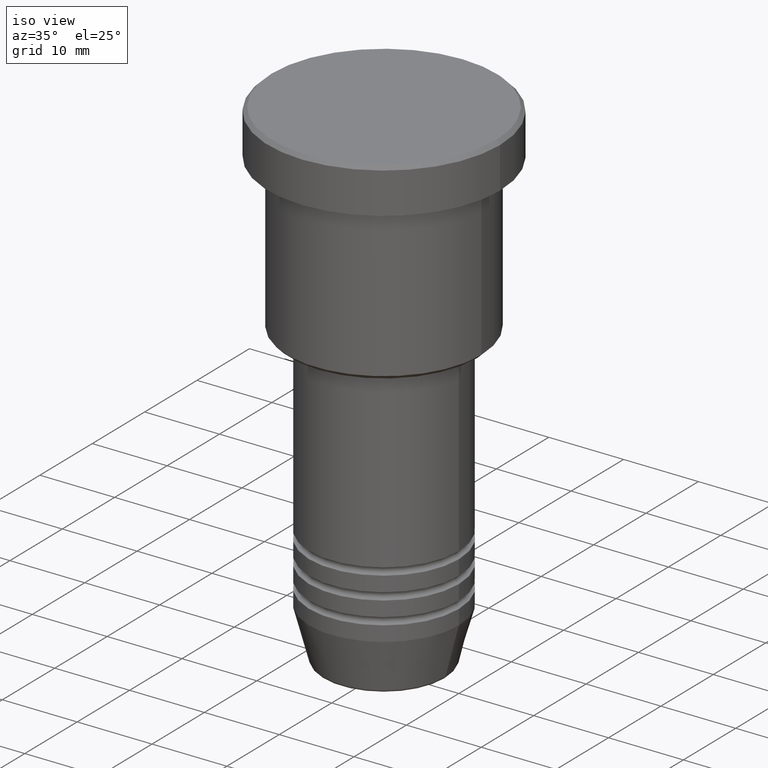
[diagram: clean part render]
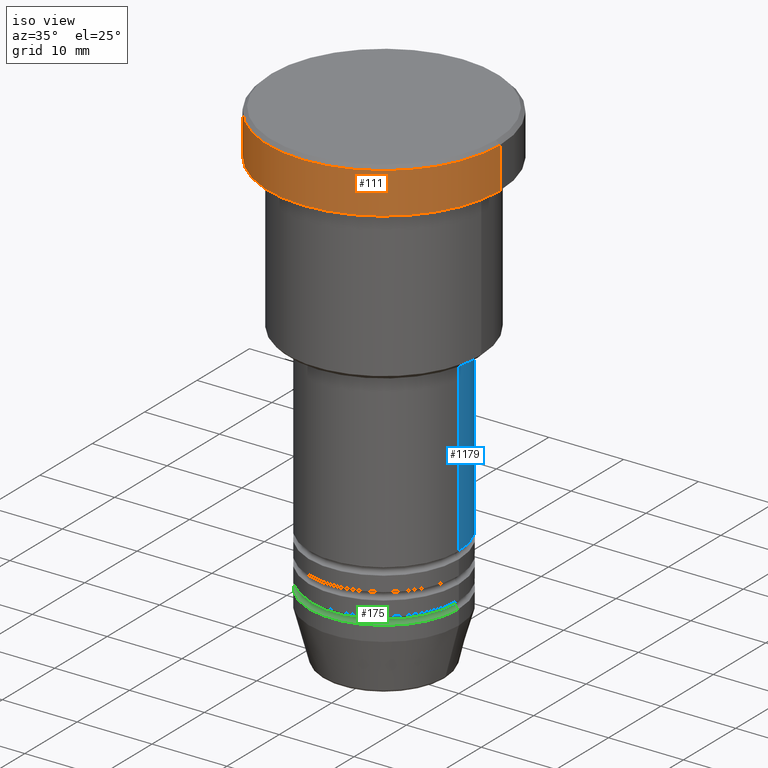
[diagram: same view with three faces highlighted in distinct colors, each labeled with its STEP entity id]
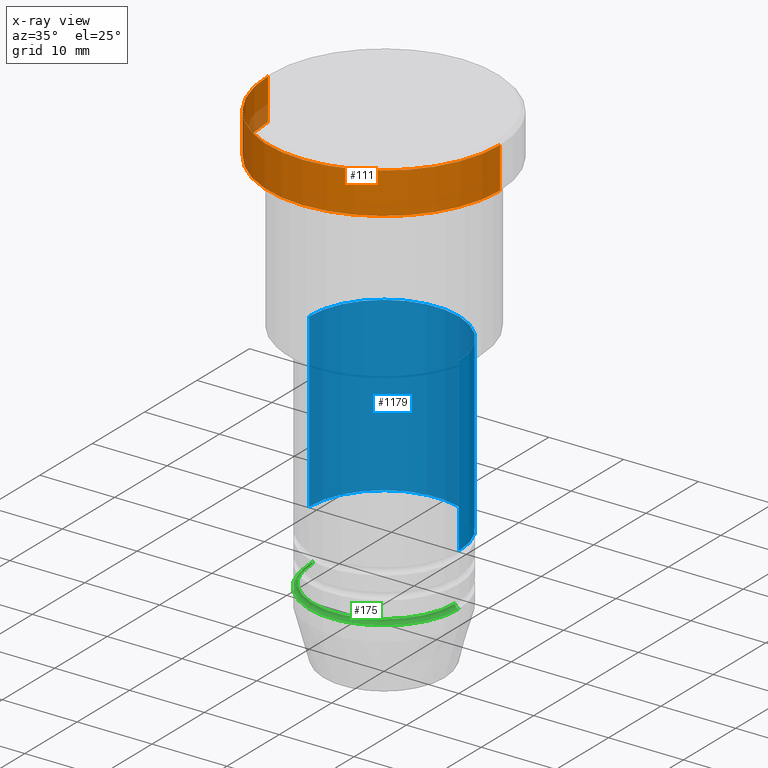
[diagram: x-ray of the same camera — body ghosted, the three highlighted faces saturated]
A machine part, iso view with three faces highlighted in distinct colors.
The next image is the same camera in x-ray (body ghosted, the three faces saturated) — at least one of them is partly hidden behind the body in this view.
Their STEP definitions:

[orange] entity #111 — the highlighted cylindrical surface (partial cylindrical patch) has radius 15.5 mm, axis along (-0, -0, 1).
#15 = CARTESIAN_POINT ( 'NONE',  ( 0.000000000000000000, 0.000000000000000000, -0.5000000000000057732 ) ) ;
#66 = DIRECTION ( 'NONE',  ( -0.000000000000000000, -0.000000000000000000, 1.000000000000000000 ) ) ;
#69 = LINE ( 'NONE', #983, #1095 ) ;
#76 = CARTESIAN_POINT ( 'NONE',  ( 0.000000000000000000, 0.000000000000000000, -5.999999999999995559 ) ) ;
#82 = EDGE_LOOP ( 'NONE', ( #865, #254, #1032, #250 ) ) ;
#87 = DIRECTION ( 'NONE',  ( 1.000000000000000000, 0.000000000000000000, 0.000000000000000000 ) ) ;
#111 = ADVANCED_FACE ( 'NONE', ( #325 ), #601, .T. ) ;
#143 = VERTEX_POINT ( 'NONE', #958 ) ;
#180 = DIRECTION ( 'NONE',  ( 1.000000000000000000, 0.000000000000000000, 0.000000000000000000 ) ) ;
#250 = ORIENTED_EDGE ( 'NONE', *, *, #786, .T. ) ;
#254 = ORIENTED_EDGE ( 'NONE', *, *, #695, .T. ) ;
#283 = DIRECTION ( 'NONE',  ( -0.000000000000000000, -0.000000000000000000, 1.000000000000000000 ) ) ;
#287 = CARTESIAN_POINT ( 'NONE',  ( -15.50000000000000000, 1.898202538678397557E-15, -5.999999999999995559 ) ) ;
#325 = FACE_OUTER_BOUND ( 'NONE', #82, .T. ) ;
#337 = CIRCLE ( 'NONE', #995, 15.50000000000000000 ) ;
#423 = VERTEX_POINT ( 'NONE', #287 ) ;
#432 = AXIS2_PLACEMENT_3D ( 'NONE', #507, #66, #1066 ) ;
#496 = DIRECTION ( 'NONE',  ( -0.000000000000000000, -0.000000000000000000, 1.000000000000000000 ) ) ;
#498 = VERTEX_POINT ( 'NONE', #667 ) ;
#507 = CARTESIAN_POINT ( 'NONE',  ( 0.000000000000000000, 0.000000000000000000, 0.000000000000000000 ) ) ;
#549 = CIRCLE ( 'NONE', #1097, 15.50000000000000000 ) ;
#580 = EDGE_CURVE ( 'NONE', #143, #750, #69, .T. ) ;
#601 = CYLINDRICAL_SURFACE ( 'NONE', #432, 15.50000000000000000 ) ;
#667 = CARTESIAN_POINT ( 'NONE',  ( -15.50000000000000000, 1.898202538678397557E-15, -0.5000000000000057732 ) ) ;
#695 = EDGE_CURVE ( 'NONE', #423, #143, #549, .T. ) ;
#750 = VERTEX_POINT ( 'NONE', #1111 ) ;
#786 = EDGE_CURVE ( 'NONE', #750, #498, #337, .T. ) ;
#801 = DIRECTION ( 'NONE',  ( -0.000000000000000000, -0.000000000000000000, 1.000000000000000000 ) ) ;
#865 = ORIENTED_EDGE ( 'NONE', *, *, #1062, .F. ) ;
#894 = CARTESIAN_POINT ( 'NONE',  ( -15.50000000000000000, 1.898202538678397557E-15, 0.000000000000000000 ) ) ;
#958 = CARTESIAN_POINT ( 'NONE',  ( 15.50000000000000000, 0.000000000000000000, -5.999999999999995559 ) ) ;
#964 = VECTOR ( 'NONE', #496, 1000.000000000000000 ) ;
#983 = CARTESIAN_POINT ( 'NONE',  ( 15.50000000000000000, 0.000000000000000000, 0.000000000000000000 ) ) ;
#995 = AXIS2_PLACEMENT_3D ( 'NONE', #15, #1180, #180 ) ;
#1032 = ORIENTED_EDGE ( 'NONE', *, *, #580, .T. ) ;
#1062 = EDGE_CURVE ( 'NONE', #423, #498, #1165, .T. ) ;
#1066 = DIRECTION ( 'NONE',  ( 1.000000000000000000, 0.000000000000000000, 0.000000000000000000 ) ) ;
#1095 = VECTOR ( 'NONE', #801, 1000.000000000000000 ) ;
#1097 = AXIS2_PLACEMENT_3D ( 'NONE', #76, #283, #87 ) ;
#1111 = CARTESIAN_POINT ( 'NONE',  ( 15.50000000000000000, 0.000000000000000000, -0.5000000000000057732 ) ) ;
#1165 = LINE ( 'NONE', #894, #964 ) ;
#1180 = DIRECTION ( 'NONE',  ( 0.000000000000000000, 0.000000000000000000, -1.000000000000000000 ) ) ;

[blue] entity #1179 — the highlighted cylindrical surface (partial cylindrical patch) has radius 10 mm, axis along (-0, -0, 1).
#57 = ORIENTED_EDGE ( 'NONE', *, *, #186, .T. ) ;
#58 = FACE_OUTER_BOUND ( 'NONE', #165, .T. ) ;
#158 = CARTESIAN_POINT ( 'NONE',  ( 10.00000000000000000, 0.000000000000000000, 0.000000000000000000 ) ) ;
#165 = EDGE_LOOP ( 'NONE', ( #1169, #57, #714, #641 ) ) ;
#186 = EDGE_CURVE ( 'NONE', #1152, #623, #709, .T. ) ;
#218 = CARTESIAN_POINT ( 'NONE',  ( 0.000000000000000000, 0.000000000000000000, -50.99999999999997868 ) ) ;
#221 = DIRECTION ( 'NONE',  ( -0.000000000000000000, -0.000000000000000000, 1.000000000000000000 ) ) ;
#361 = CARTESIAN_POINT ( 'NONE',  ( 10.00000000000000000, 0.000000000000000000, -27.99999999999999645 ) ) ;
#368 = VERTEX_POINT ( 'NONE', #595 ) ;
#449 = CARTESIAN_POINT ( 'NONE',  ( 0.000000000000000000, 0.000000000000000000, -27.99999999999999645 ) ) ;
#454 = DIRECTION ( 'NONE',  ( 1.000000000000000000, 0.000000000000000000, 0.000000000000000000 ) ) ;
#519 = DIRECTION ( 'NONE',  ( -0.000000000000000000, -0.000000000000000000, 1.000000000000000000 ) ) ;
#544 = CYLINDRICAL_SURFACE ( 'NONE', #569, 10.00000000000000000 ) ;
#569 = AXIS2_PLACEMENT_3D ( 'NONE', #639, #621, #454 ) ;
#582 = DIRECTION ( 'NONE',  ( 1.000000000000000000, 0.000000000000000000, 0.000000000000000000 ) ) ;
#589 = VECTOR ( 'NONE', #519, 1000.000000000000000 ) ;
#595 = CARTESIAN_POINT ( 'NONE',  ( 10.00000000000000000, 0.000000000000000000, -50.99999999999997868 ) ) ;
#611 = AXIS2_PLACEMENT_3D ( 'NONE', #218, #745, #582 ) ;
#621 = DIRECTION ( 'NONE',  ( -0.000000000000000000, -0.000000000000000000, 1.000000000000000000 ) ) ;
#623 = VERTEX_POINT ( 'NONE', #1158 ) ;
#639 = CARTESIAN_POINT ( 'NONE',  ( 0.000000000000000000, 0.000000000000000000, 0.000000000000000000 ) ) ;
#641 = ORIENTED_EDGE ( 'NONE', *, *, #677, .F. ) ;
#664 = CIRCLE ( 'NONE', #611, 10.00000000000000000 ) ;
#677 = EDGE_CURVE ( 'NONE', #368, #707, #712, .T. ) ;
#707 = VERTEX_POINT ( 'NONE', #361 ) ;
#709 = LINE ( 'NONE', #1082, #774 ) ;
#712 = LINE ( 'NONE', #158, #589 ) ;
#714 = ORIENTED_EDGE ( 'NONE', *, *, #744, .F. ) ;
#742 = AXIS2_PLACEMENT_3D ( 'NONE', #449, #1003, #919 ) ;
#744 = EDGE_CURVE ( 'NONE', #707, #623, #859, .T. ) ;
#745 = DIRECTION ( 'NONE',  ( -0.000000000000000000, -0.000000000000000000, 1.000000000000000000 ) ) ;
#774 = VECTOR ( 'NONE', #221, 1000.000000000000000 ) ;
#859 = CIRCLE ( 'NONE', #742, 10.00000000000000000 ) ;
#869 = CARTESIAN_POINT ( 'NONE',  ( -10.00000000000000000, 1.224646799147353256E-15, -50.99999999999997868 ) ) ;
#919 = DIRECTION ( 'NONE',  ( 1.000000000000000000, 0.000000000000000000, 0.000000000000000000 ) ) ;
#945 = EDGE_CURVE ( 'NONE', #368, #1152, #664, .T. ) ;
#1003 = DIRECTION ( 'NONE',  ( -0.000000000000000000, -0.000000000000000000, 1.000000000000000000 ) ) ;
#1082 = CARTESIAN_POINT ( 'NONE',  ( -10.00000000000000000, 1.224646799147353256E-15, 0.000000000000000000 ) ) ;
#1152 = VERTEX_POINT ( 'NONE', #869 ) ;
#1158 = CARTESIAN_POINT ( 'NONE',  ( -10.00000000000000000, 1.224646799147353256E-15, -27.99999999999999645 ) ) ;
#1169 = ORIENTED_EDGE ( 'NONE', *, *, #945, .T. ) ;
#1179 = ADVANCED_FACE ( 'NONE', ( #58 ), #544, .T. ) ;

[green] entity #175 — the highlighted toroidal blend (fillet) surface has major radius 10 mm and minor (blend) radius 0.5 mm.
#43 = DIRECTION ( 'NONE',  ( 1.224646799147353207E-16, 1.000000000000000000, 0.000000000000000000 ) ) ;
#70 = CARTESIAN_POINT ( 'NONE',  ( 9.500000000000001776, 0.000000000000000000, -57.49999999999998579 ) ) ;
#131 = CARTESIAN_POINT ( 'NONE',  ( -10.00000000000000178, 1.224646799147353454E-15, -57.49999999999998579 ) ) ;
#175 = ADVANCED_FACE ( 'NONE', ( #535 ), #626, .F. ) ;
#246 = CIRCLE ( 'NONE', #1052, 0.5000000000000004441 ) ;
#263 = CARTESIAN_POINT ( 'NONE',  ( -9.500000000000001776, 1.194030629168669469E-15, -57.49999999999998579 ) ) ;
#338 = VERTEX_POINT ( 'NONE', #70 ) ;
#339 = CIRCLE ( 'NONE', #1016, 10.00000000000000000 ) ;
#382 = ORIENTED_EDGE ( 'NONE', *, *, #1115, .F. ) ;
#405 = VERTEX_POINT ( 'NONE', #471 ) ;
#413 = DIRECTION ( 'NONE',  ( 0.000000000000000000, 0.000000000000000000, -1.000000000000000000 ) ) ;
#445 = DIRECTION ( 'NONE',  ( 1.000000000000000000, 0.000000000000000000, 0.000000000000000000 ) ) ;
#471 = CARTESIAN_POINT ( 'NONE',  ( 10.00000000000000000, 0.000000000000000000, -57.99999999999999289 ) ) ;
#503 = EDGE_CURVE ( 'NONE', #817, #673, #246, .T. ) ;
#531 = AXIS2_PLACEMENT_3D ( 'NONE', #1019, #1107, #445 ) ;
#535 = FACE_OUTER_BOUND ( 'NONE', #1178, .T. ) ;
#538 = CARTESIAN_POINT ( 'NONE',  ( 0.000000000000000000, 0.000000000000000000, -57.99999999999999289 ) ) ;
#555 = DIRECTION ( 'NONE',  ( -0.000000000000000000, -0.000000000000000000, 1.000000000000000000 ) ) ;
#591 = DIRECTION ( 'NONE',  ( 0.000000000000000000, -1.000000000000000000, 0.000000000000000000 ) ) ;
#626 = TOROIDAL_SURFACE ( 'NONE', #1030, 10.00000000000000178, 0.5000000000000000000 ) ;
#637 = DIRECTION ( 'NONE',  ( 1.000000000000000000, 0.000000000000000000, 0.000000000000000000 ) ) ;
#648 = DIRECTION ( 'NONE',  ( -0.000000000000000000, -0.000000000000000000, 1.000000000000000000 ) ) ;
#671 = DIRECTION ( 'NONE',  ( 1.000000000000000000, 0.000000000000000000, 0.000000000000000000 ) ) ;
#673 = VERTEX_POINT ( 'NONE', #788 ) ;
#764 = EDGE_CURVE ( 'NONE', #673, #405, #339, .T. ) ;
#788 = CARTESIAN_POINT ( 'NONE',  ( -10.00000000000000000, 1.224646799147353256E-15, -57.99999999999999289 ) ) ;
#811 = ORIENTED_EDGE ( 'NONE', *, *, #764, .T. ) ;
#817 = VERTEX_POINT ( 'NONE', #263 ) ;
#823 = EDGE_CURVE ( 'NONE', #817, #338, #1173, .T. ) ;
#825 = ORIENTED_EDGE ( 'NONE', *, *, #823, .F. ) ;
#874 = ORIENTED_EDGE ( 'NONE', *, *, #503, .T. ) ;
#1016 = AXIS2_PLACEMENT_3D ( 'NONE', #538, #555, #637 ) ;
#1019 = CARTESIAN_POINT ( 'NONE',  ( 0.000000000000000000, 0.000000000000000000, -57.49999999999998579 ) ) ;
#1030 = AXIS2_PLACEMENT_3D ( 'NONE', #1181, #648, #671 ) ;
#1052 = AXIS2_PLACEMENT_3D ( 'NONE', #131, #43, #1121 ) ;
#1054 = AXIS2_PLACEMENT_3D ( 'NONE', #1145, #591, #413 ) ;
#1107 = DIRECTION ( 'NONE',  ( -0.000000000000000000, -0.000000000000000000, 1.000000000000000000 ) ) ;
#1115 = EDGE_CURVE ( 'NONE', #338, #405, #1130, .T. ) ;
#1121 = DIRECTION ( 'NONE',  ( -1.000000000000000000, 1.224646799147353454E-16, 0.000000000000000000 ) ) ;
#1130 = CIRCLE ( 'NONE', #1054, 0.5000000000000004441 ) ;
#1145 = CARTESIAN_POINT ( 'NONE',  ( 10.00000000000000178, 0.000000000000000000, -57.49999999999998579 ) ) ;
#1173 = CIRCLE ( 'NONE', #531, 9.500000000000001776 ) ;
#1178 = EDGE_LOOP ( 'NONE', ( #825, #874, #811, #382 ) ) ;
#1181 = CARTESIAN_POINT ( 'NONE',  ( 0.000000000000000000, 0.000000000000000000, -57.49999999999998579 ) ) ;